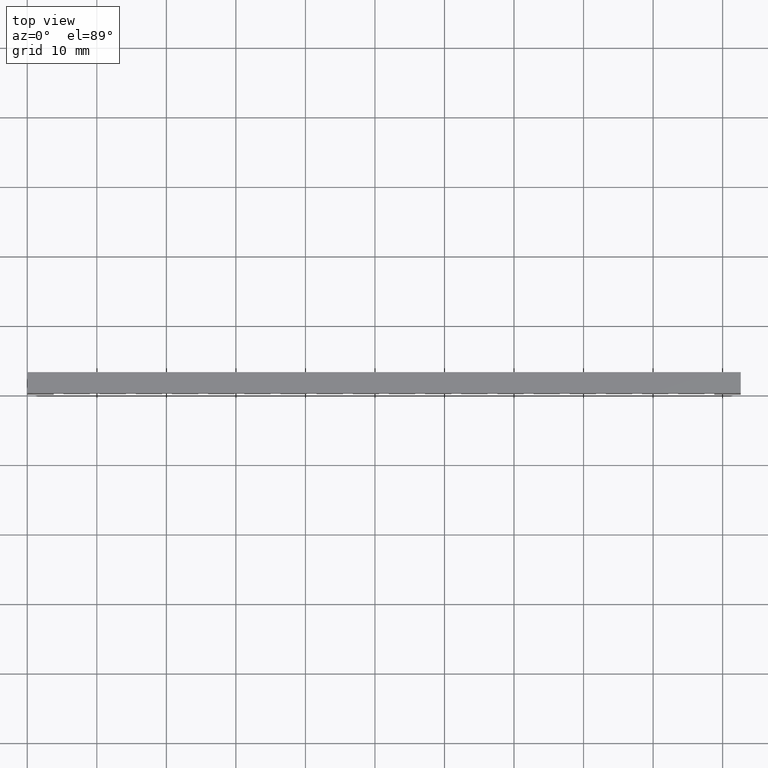
[diagram: clean part render]
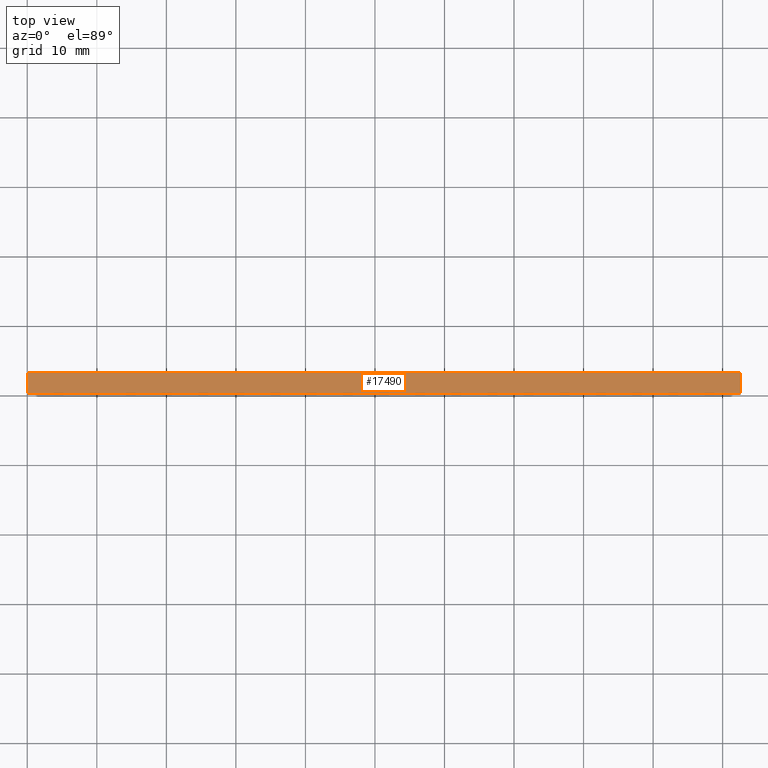
[diagram: same view with one face highlighted and labeled with its STEP entity id]
A machine part, top view. The second image highlights one B-rep face of the part: STEP entity #17490.
In plain terms, the highlighted planar face has unit normal (0, 0, -1).
Its self-contained STEP definition (entity closure, byte-faithful):
#460=CARTESIAN_POINT('',(5.60716722168537,-8.8750000000004,
18.1599999999988));
#470=VERTEX_POINT('',#460);
#6700=CARTESIAN_POINT('',(5.60716722168537,-8.8750000000004,
120.759999999999));
#6710=VERTEX_POINT('',#6700);
#6740=CARTESIAN_POINT('',(5.60716722168537,-8.8750000000004,41.874984));
#6750=DIRECTION('',(0.,0.,1.));
#6760=VECTOR('',#6750,1.);
#6770=LINE('',#6740,#6760);
#6780=EDGE_CURVE('',#470,#6710,#6770,.T.);
#7350=CARTESIAN_POINT('',(2.60716722168537,-8.8750000000004,
18.1599999999988));
#7360=VERTEX_POINT('',#7350);
#7390=CARTESIAN_POINT('',(2.60716722168537,-8.8750000000004,41.874984));
#7400=DIRECTION('',(0.,0.,-1.));
#7410=VECTOR('',#7400,1.);
#7420=LINE('',#7390,#7410);
#7430=CARTESIAN_POINT('',(2.60716722168537,-8.8750000000004,
120.759999999999));
#7440=VERTEX_POINT('',#7430);
#7450=EDGE_CURVE('',#7440,#7360,#7420,.T.);
#13870=CARTESIAN_POINT('',(5.60716722168535,-8.8750000000004,
120.759999999999));
#13880=DIRECTION('',(1.,0.,0.));
#13890=VECTOR('',#13880,1.);
#13900=LINE('',#13870,#13890);
#13910=EDGE_CURVE('',#7440,#6710,#13900,.T.);
#17200=CARTESIAN_POINT('',(5.60716722168535,-8.8750000000004,
18.1599999999988));
#17210=DIRECTION('',(1.,0.,0.));
#17220=VECTOR('',#17210,1.);
#17230=LINE('',#17200,#17220);
#17240=EDGE_CURVE('',#7360,#470,#17230,.T.);
#17380=CARTESIAN_POINT('',(5.60716722168537,-8.8750000000004,
110.360000000001));
#17390=DIRECTION('',(0.,-1.,0.));
#17400=DIRECTION('',(0.,0.,1.));
#17410=AXIS2_PLACEMENT_3D('',#17380,#17390,#17400);
#17420=PLANE('',#17410);
#17430=ORIENTED_EDGE('',*,*,#13910,.T.);
#17440=ORIENTED_EDGE('',*,*,#7450,.F.);
#17450=ORIENTED_EDGE('',*,*,#17240,.F.);
#17460=ORIENTED_EDGE('',*,*,#6780,.F.);
#17470=EDGE_LOOP('',(#17460,#17450,#17440,#17430));
#17480=FACE_OUTER_BOUND('',#17470,.T.);
#17490=ADVANCED_FACE('',(#17480),#17420,.F.);